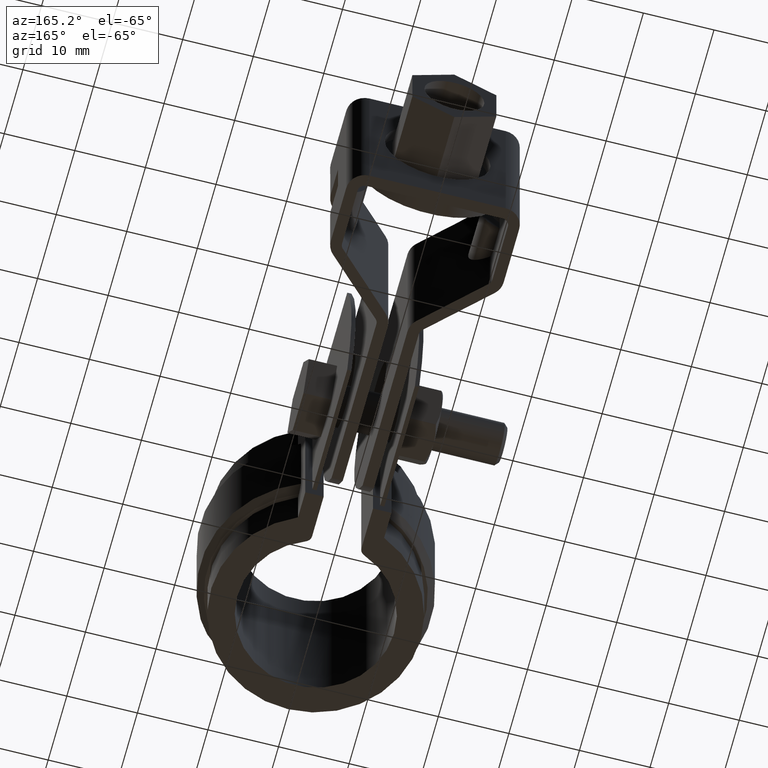
[diagram: clean part render]
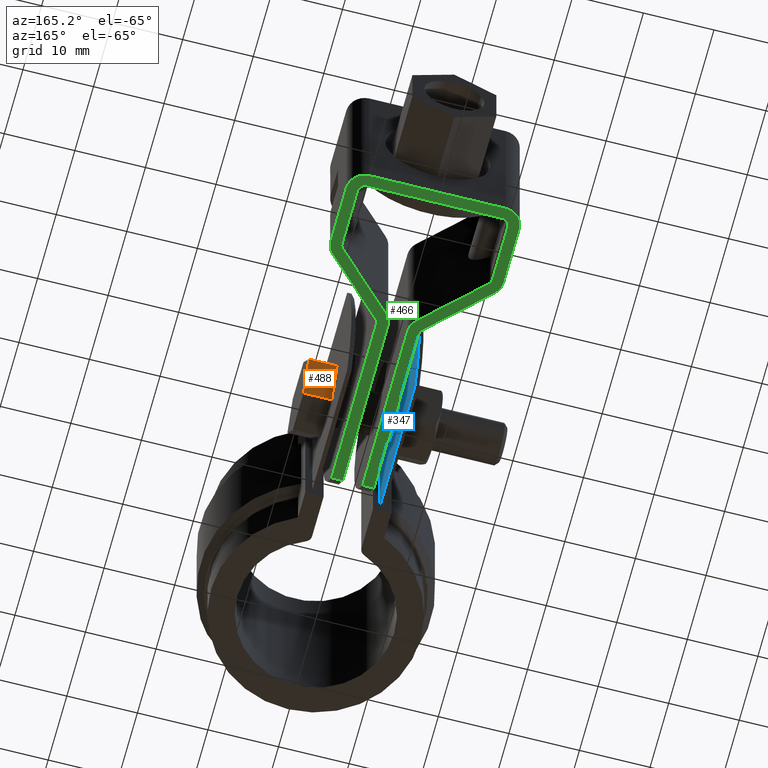
[diagram: same view with three faces highlighted in distinct colors, each labeled with its STEP entity id]
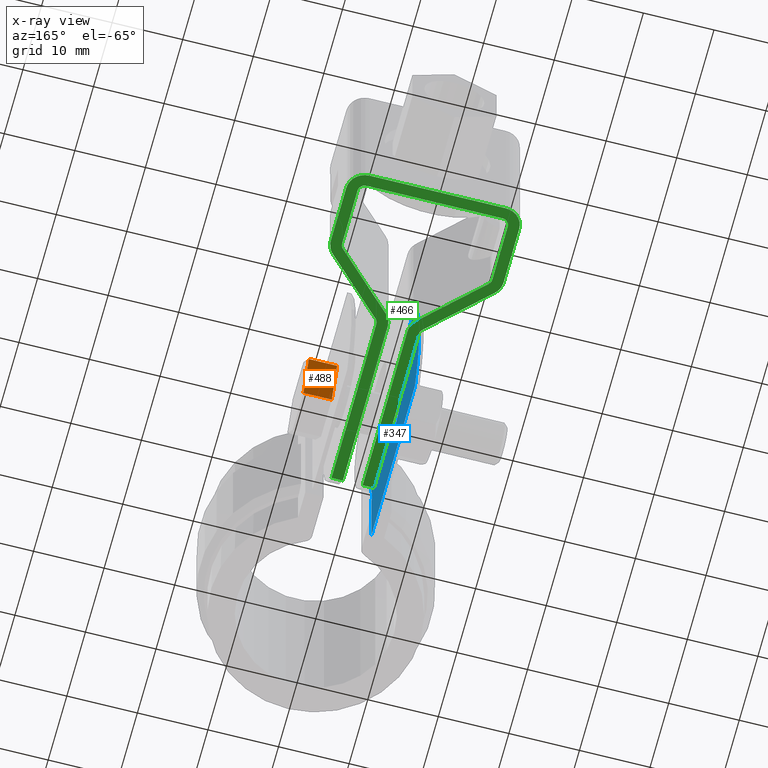
[diagram: x-ray of the same camera — body ghosted, the three highlighted faces saturated]
A machine part, auxiliary view with three faces highlighted in distinct colors.
The next image is the same camera in x-ray (body ghosted, the three faces saturated) — at least one of them is partly hidden behind the body in this view.
Their STEP definitions:

[orange] entity #488 — the highlighted planar face has unit normal (0, -0.866, 0.5).
#488 = ADVANCED_FACE( '', ( #892 ), #893, .F. );
#892 = FACE_OUTER_BOUND( '', #1721, .T. );
#893 = PLANE( '', #1722 );
#1721 = EDGE_LOOP( '', ( #4222, #4223, #4224, #4225 ) );
#1722 = AXIS2_PLACEMENT_3D( '', #4226, #4227, #4228 );
#4222 = ORIENTED_EDGE( '', *, *, #4970, .T. );
#4223 = ORIENTED_EDGE( '', *, *, #4971, .F. );
#4224 = ORIENTED_EDGE( '', *, *, #4972, .F. );
#4225 = ORIENTED_EDGE( '', *, *, #4973, .T. );
#4226 = CARTESIAN_POINT( '', ( 9.09999999999999, 27.8447660081834, -17.5000000000000 ) );
#4227 = DIRECTION( '', ( 0.000000000000000, -0.866025403784439, 0.500000000000000 ) );
#4228 = DIRECTION( '', ( 0.000000000000000, -0.500000000000000, -0.866025403784439 ) );
#4970 = EDGE_CURVE( '', #5878, #5879, #5880, .T. );
#4971 = EDGE_CURVE( '', #5881, #5879, #5882, .T. );
#4972 = EDGE_CURVE( '', #5883, #5881, #5884, .T. );
#4973 = EDGE_CURVE( '', #5883, #5878, #5885, .T. );
#5878 = VERTEX_POINT( '', #8507 );
#5879 = VERTEX_POINT( '', #8508 );
#5880 = LINE( '', #8509, #8510 );
#5881 = VERTEX_POINT( '', #8511 );
#5882 = LINE( '', #8512, #8513 );
#5883 = VERTEX_POINT( '', #8514 );
#5884 = LINE( '', #8515, #8516 );
#5885 = LINE( '', #8517, #8518 );
#8507 = CARTESIAN_POINT( '', ( 5.09999999999999, 27.8447660081834, -17.5000000000000 ) );
#8508 = CARTESIAN_POINT( '', ( 5.09999999999999, 30.7315173541315, -12.5000000000000 ) );
#8509 = CARTESIAN_POINT( '', ( 5.09999999999999, 27.8447660081834, -17.5000000000000 ) );
#8510 = VECTOR( '', #9380, 1000.00000000000 );
#8511 = CARTESIAN_POINT( '', ( 9.09999999999999, 30.7315173541315, -12.5000000000000 ) );
#8512 = CARTESIAN_POINT( '', ( 9.09999999999999, 30.7315173541315, -12.5000000000000 ) );
#8513 = VECTOR( '', #9381, 1000.00000000000 );
#8514 = CARTESIAN_POINT( '', ( 9.09999999999999, 27.8447660081834, -17.5000000000000 ) );
#8515 = CARTESIAN_POINT( '', ( 9.09999999999999, 27.8447660081834, -17.5000000000000 ) );
#8516 = VECTOR( '', #9382, 1000.00000000000 );
#8517 = CARTESIAN_POINT( '', ( 9.09999999999999, 27.8447660081834, -17.5000000000000 ) );
#8518 = VECTOR( '', #9383, 1000.00000000000 );
#9380 = DIRECTION( '', ( 0.000000000000000, 0.500000000000000, 0.866025403784439 ) );
#9381 = DIRECTION( '', ( -1.00000000000000, 0.000000000000000, 0.000000000000000 ) );
#9382 = DIRECTION( '', ( 0.000000000000000, 0.500000000000000, 0.866025403784439 ) );
#9383 = DIRECTION( '', ( -1.00000000000000, 0.000000000000000, 0.000000000000000 ) );

[blue] entity #347 — the highlighted planar face has unit normal (1, -0, 0).
#347 = ADVANCED_FACE( '', ( #589, #590 ), #591, .T. );
#589 = FACE_BOUND( '', #1178, .T. );
#590 = FACE_OUTER_BOUND( '', #1179, .T. );
#591 = PLANE( '', #1180 );
#1178 = EDGE_LOOP( '', ( #2559 ) );
#1179 = EDGE_LOOP( '', ( #2560, #2561, #2562, #2563, #2564, #2565 ) );
#1180 = AXIS2_PLACEMENT_3D( '', #2566, #2567, #2568 );
#2559 = ORIENTED_EDGE( '', *, *, #4596, .T. );
#2560 = ORIENTED_EDGE( '', *, *, #4582, .T. );
#2561 = ORIENTED_EDGE( '', *, *, #4592, .F. );
#2562 = ORIENTED_EDGE( '', *, *, #4539, .T. );
#2563 = ORIENTED_EDGE( '', *, *, #4530, .F. );
#2564 = ORIENTED_EDGE( '', *, *, #4537, .T. );
#2565 = ORIENTED_EDGE( '', *, *, #4496, .T. );
#2566 = CARTESIAN_POINT( '', ( -4.50000000000000, 38.4580146622353, 0.000000000000000 ) );
#2567 = DIRECTION( '', ( 1.00000000000000, -6.12303176911189E-017, 0.000000000000000 ) );
#2568 = DIRECTION( '', ( -6.12303176911189E-017, -1.00000000000000, 0.000000000000000 ) );
#4496 = EDGE_CURVE( '', #5075, #5092, #5094, .T. );
#4530 = EDGE_CURVE( '', #5152, #5154, #5155, .T. );
#4537 = EDGE_CURVE( '', #5152, #5075, #5165, .T. );
#4539 = EDGE_CURVE( '', #5168, #5154, #5169, .T. );
#4582 = EDGE_CURVE( '', #5092, #5239, #5241, .T. );
#4592 = EDGE_CURVE( '', #5168, #5239, #5251, .T. );
#4596 = EDGE_CURVE( '', #5257, #5257, #5258, .F. );
#5075 = VERTEX_POINT( '', #6126 );
#5092 = VERTEX_POINT( '', #6148 );
#5094 = LINE( '', #6150, #6151 );
#5152 = VERTEX_POINT( '', #6461 );
#5154 = VERTEX_POINT( '', #6464 );
#5155 = LINE( '', #6465, #6466 );
#5165 = CIRCLE( '', #6477, 35.0000000000000 );
#5168 = VERTEX_POINT( '', #6481 );
#5169 = LINE( '', #6482, #6483 );
#5239 = VERTEX_POINT( '', #6813 );
#5241 = LINE( '', #6828, #6829 );
#5251 = B_SPLINE_CURVE_WITH_KNOTS( '', 3, ( #6870, #6871, #6872, #6873, #6874 ), .UNSPECIFIED., .F., .F., ( 4, 1, 4 ), ( 7.27248122833757E-014, 0.00189834561584315, 0.00379669123161330 ), .UNSPECIFIED. );
#5257 = VERTEX_POINT( '', #6918 );
#5258 = CIRCLE( '', #6919, 3.50000000000000 );
#6126 = CARTESIAN_POINT( '', ( -4.50000000000000, 36.1497567387904, 0.000000000000000 ) );
#6148 = CARTESIAN_POINT( '', ( -4.50000000000000, 12.7485724691041, 0.000000000000000 ) );
#6150 = CARTESIAN_POINT( '', ( -4.50000000000000, 38.4580146622353, 0.000000000000000 ) );
#6151 = VECTOR( '', #8760, 1000.00000000000 );
#6461 = CARTESIAN_POINT( '', ( -4.50000000000000, 36.1497567387904, -25.0000000000000 ) );
#6464 = CARTESIAN_POINT( '', ( -4.50000000000000, 12.7485724691041, -25.0000000000000 ) );
#6465 = CARTESIAN_POINT( '', ( -4.50000000000000, 38.4580146622353, -25.0000000000000 ) );
#6466 = VECTOR( '', #8789, 1000.00000000000 );
#6477 = AXIS2_PLACEMENT_3D( '', #8806, #8807, #8808 );
#6481 = CARTESIAN_POINT( '', ( -4.50000000000000, 12.7485724690808, -14.3840607566639 ) );
#6482 = CARTESIAN_POINT( '', ( -4.50000000000000, 12.7485724691041, 0.000000000000000 ) );
#6483 = VECTOR( '', #8810, 1000.00000000000 );
#6813 = CARTESIAN_POINT( '', ( -4.50000000000000, 12.7485724690808, -10.6159392433361 ) );
#6828 = CARTESIAN_POINT( '', ( -4.50000000000000, 12.7485724691041, 0.000000000000000 ) );
#6829 = VECTOR( '', #8851, 1000.00000000000 );
#6870 = CARTESIAN_POINT( '', ( -4.50000000000003, 12.7485724690573, -14.3840607567347 ) );
#6871 = CARTESIAN_POINT( '', ( -4.50000000000003, 12.9499317954731, -13.7769320858321 ) );
#6872 = CARTESIAN_POINT( '', ( -4.50000000000004, 13.1626015936870, -12.5000000000001 ) );
#6873 = CARTESIAN_POINT( '', ( -4.50000000000003, 12.9499317954731, -11.2230679141680 ) );
#6874 = CARTESIAN_POINT( '', ( -4.50000000000003, 12.7485724690574, -10.6159392432655 ) );
#6918 = CARTESIAN_POINT( '', ( -4.50000000000000, 28.4580146622353, -12.5000000000000 ) );
#6919 = AXIS2_PLACEMENT_3D( '', #8859, #8860, #8861 );
#8760 = DIRECTION( '', ( -6.12303176911189E-017, -1.00000000000000, 0.000000000000000 ) );
#8789 = DIRECTION( '', ( -6.12303176911189E-017, -1.00000000000000, 0.000000000000000 ) );
#8806 = CARTESIAN_POINT( '', ( -4.50000000000000, 3.45801466223531, -12.5000000000000 ) );
#8807 = DIRECTION( '', ( 1.00000000000000, -6.12303176911189E-017, 0.000000000000000 ) );
#8808 = DIRECTION( '', ( 6.12303176911189E-017, 1.00000000000000, 0.000000000000000 ) );
#8810 = DIRECTION( '', ( 0.000000000000000, 0.000000000000000, -1.00000000000000 ) );
#8851 = DIRECTION( '', ( 0.000000000000000, 0.000000000000000, -1.00000000000000 ) );
#8859 = CARTESIAN_POINT( '', ( -4.50000000000000, 24.9580146622353, -12.5000000000000 ) );
#8860 = DIRECTION( '', ( 1.00000000000000, -6.12303176911189E-017, 0.000000000000000 ) );
#8861 = DIRECTION( '', ( 6.12303176911189E-017, 1.00000000000000, 0.000000000000000 ) );

[green] entity #466 — the highlighted planar face has unit normal (0, 0, -1).
#466 = ADVANCED_FACE( '', ( #840 ), #841, .T. );
#840 = FACE_OUTER_BOUND( '', #1669, .T. );
#841 = PLANE( '', #1670 );
#1669 = EDGE_LOOP( '', ( #4039, #4040, #4041, #4042, #4043, #4044, #4045, #4046, #4047, #4048, #4049, #4050, #4051, #4052, #4053, #4054, #4055, #4056, #4057, #4058, #4059, #4060, #4061, #4062, #4063, #4064, #4065, #4066 ) );
#1670 = AXIS2_PLACEMENT_3D( '', #4067, #4068, #4069 );
#4039 = ORIENTED_EDGE( '', *, *, #4923, .T. );
#4040 = ORIENTED_EDGE( '', *, *, #4888, .T. );
#4041 = ORIENTED_EDGE( '', *, *, #4897, .F. );
#4042 = ORIENTED_EDGE( '', *, *, #4891, .F. );
#4043 = ORIENTED_EDGE( '', *, *, #4896, .F. );
#4044 = ORIENTED_EDGE( '', *, *, #4885, .T. );
#4045 = ORIENTED_EDGE( '', *, *, #4932, .T. );
#4046 = ORIENTED_EDGE( '', *, *, #4933, .T. );
#4047 = ORIENTED_EDGE( '', *, *, #4934, .T. );
#4048 = ORIENTED_EDGE( '', *, *, #4840, .T. );
#4049 = ORIENTED_EDGE( '', *, *, #4931, .T. );
#4050 = ORIENTED_EDGE( '', *, *, #4883, .F. );
#4051 = ORIENTED_EDGE( '', *, *, #4870, .F. );
#4052 = ORIENTED_EDGE( '', *, *, #4935, .F. );
#4053 = ORIENTED_EDGE( '', *, *, #4936, .F. );
#4054 = ORIENTED_EDGE( '', *, *, #4937, .F. );
#4055 = ORIENTED_EDGE( '', *, *, #4847, .T. );
#4056 = ORIENTED_EDGE( '', *, *, #4843, .T. );
#4057 = ORIENTED_EDGE( '', *, *, #4938, .T. );
#4058 = ORIENTED_EDGE( '', *, *, #4939, .F. );
#4059 = ORIENTED_EDGE( '', *, *, #4876, .F. );
#4060 = ORIENTED_EDGE( '', *, *, #4873, .F. );
#4061 = ORIENTED_EDGE( '', *, *, #4880, .F. );
#4062 = ORIENTED_EDGE( '', *, *, #4881, .F. );
#4063 = ORIENTED_EDGE( '', *, *, #4930, .T. );
#4064 = ORIENTED_EDGE( '', *, *, #4928, .T. );
#4065 = ORIENTED_EDGE( '', *, *, #4925, .T. );
#4066 = ORIENTED_EDGE( '', *, *, #4921, .T. );
#4067 = CARTESIAN_POINT( '', ( -9.64999999980245, 62.6980146721844, -24.9999999871374 ) );
#4068 = DIRECTION( '', ( 7.65540480244708E-013, 9.34504695848679E-011, -1.00000000000000 ) );
#4069 = DIRECTION( '', ( 8.53589041478956E-013, 1.00000000000000, 9.34504695848685E-011 ) );
#4840 = EDGE_CURVE( '', #5668, #5669, #5670, .T. );
#4843 = EDGE_CURVE( '', #5673, #5674, #5675, .T. );
#4847 = EDGE_CURVE( '', #5680, #5673, #5681, .T. );
#4870 = EDGE_CURVE( '', #5717, #5719, #5720, .T. );
#4873 = EDGE_CURVE( '', #5722, #5724, #5725, .T. );
#4876 = EDGE_CURVE( '', #5724, #5728, #5729, .T. );
#4880 = EDGE_CURVE( '', #5732, #5722, #5734, .T. );
#4881 = EDGE_CURVE( '', #5735, #5732, #5736, .T. );
#4883 = EDGE_CURVE( '', #5719, #5738, #5739, .T. );
#4885 = EDGE_CURVE( '', #5741, #5742, #5743, .F. );
#4888 = EDGE_CURVE( '', #5746, #5747, #5748, .T. );
#4891 = EDGE_CURVE( '', #5751, #5752, #5753, .T. );
#4896 = EDGE_CURVE( '', #5741, #5751, #5760, .T. );
#4897 = EDGE_CURVE( '', #5752, #5747, #5761, .T. );
#4921 = EDGE_CURVE( '', #5802, #5800, #5803, .T. );
#4923 = EDGE_CURVE( '', #5800, #5746, #5805, .T. );
#4925 = EDGE_CURVE( '', #5807, #5802, #5808, .T. );
#4928 = EDGE_CURVE( '', #5811, #5807, #5812, .T. );
#4930 = EDGE_CURVE( '', #5735, #5811, #5814, .T. );
#4931 = EDGE_CURVE( '', #5669, #5738, #5815, .T. );
#4932 = EDGE_CURVE( '', #5742, #5816, #5817, .T. );
#4933 = EDGE_CURVE( '', #5816, #5818, #5819, .T. );
#4934 = EDGE_CURVE( '', #5818, #5668, #5820, .T. );
#4935 = EDGE_CURVE( '', #5821, #5717, #5822, .T. );
#4936 = EDGE_CURVE( '', #5823, #5821, #5824, .T. );
#4937 = EDGE_CURVE( '', #5680, #5823, #5825, .F. );
#4938 = EDGE_CURVE( '', #5674, #5826, #5827, .T. );
#4939 = EDGE_CURVE( '', #5728, #5826, #5828, .T. );
#5668 = VERTEX_POINT( '', #8130 );
#5669 = VERTEX_POINT( '', #8131 );
#5670 = CIRCLE( '', #8132, 2.59999999999999 );
#5673 = VERTEX_POINT( '', #8137 );
#5674 = VERTEX_POINT( '', #8138 );
#5675 = LINE( '', #8139, #8140 );
#5680 = VERTEX_POINT( '', #8145 );
#5681 = LINE( '', #8146, #8147 );
#5717 = VERTEX_POINT( '', #8220 );
#5719 = VERTEX_POINT( '', #8223 );
#5720 = LINE( '', #8224, #8225 );
#5722 = VERTEX_POINT( '', #8228 );
#5724 = VERTEX_POINT( '', #8231 );
#5725 = CIRCLE( '', #8232, 0.999999999999999 );
#5728 = VERTEX_POINT( '', #8237 );
#5729 = LINE( '', #8238, #8239 );
#5732 = VERTEX_POINT( '', #8244 );
#5734 = LINE( '', #8247, #8248 );
#5735 = VERTEX_POINT( '', #8249 );
#5736 = CIRCLE( '', #8250, 1.00000000000000 );
#5738 = VERTEX_POINT( '', #8253 );
#5739 = CIRCLE( '', #8254, 2.59999999999999 );
#5741 = VERTEX_POINT( '', #8257 );
#5742 = VERTEX_POINT( '', #8258 );
#5743 = CIRCLE( '', #8259, 1.00000000000000 );
#5746 = VERTEX_POINT( '', #8264 );
#5747 = VERTEX_POINT( '', #8265 );
#5748 = CIRCLE( '', #8266, 2.60000000000000 );
#5751 = VERTEX_POINT( '', #8271 );
#5752 = VERTEX_POINT( '', #8272 );
#5753 = LINE( '', #8273, #8274 );
#5760 = LINE( '', #8281, #8282 );
#5761 = LINE( '', #8283, #8284 );
#5800 = VERTEX_POINT( '', #8359 );
#5802 = VERTEX_POINT( '', #8362 );
#5803 = CIRCLE( '', #8363, 1.00000000000000 );
#5805 = LINE( '', #8366, #8367 );
#5807 = VERTEX_POINT( '', #8370 );
#5808 = LINE( '', #8371, #8372 );
#5811 = VERTEX_POINT( '', #8377 );
#5812 = CIRCLE( '', #8378, 1.00000000000000 );
#5814 = LINE( '', #8381, #8382 );
#5815 = LINE( '', #8383, #8384 );
#5816 = VERTEX_POINT( '', #8385 );
#5817 = LINE( '', #8386, #8387 );
#5818 = VERTEX_POINT( '', #8388 );
#5819 = CIRCLE( '', #8389, 2.59999999999999 );
#5820 = LINE( '', #8390, #8391 );
#5821 = VERTEX_POINT( '', #8392 );
#5822 = CIRCLE( '', #8393, 2.59999999999999 );
#5823 = VERTEX_POINT( '', #8394 );
#5824 = LINE( '', #8395, #8396 );
#5825 = CIRCLE( '', #8397, 0.999999999999998 );
#5826 = VERTEX_POINT( '', #8398 );
#5827 = LINE( '', #8399, #8400 );
#5828 = CIRCLE( '', #8401, 2.59999999999999 );
#8130 = CARTESIAN_POINT( '', ( -12.2499999998024, 62.6980146721866, -24.9999999871394 ) );
#8131 = CARTESIAN_POINT( '', ( -9.64999999980023, 65.2980146721844, -24.9999999868944 ) );
#8132 = AXIS2_PLACEMENT_3D( '', #9181, #9182, #9183 );
#8137 = CARTESIAN_POINT( '', ( 3.00000000016092, 19.7980147052621, -24.9999999911367 ) );
#8138 = CARTESIAN_POINT( '', ( 1.40000000016093, 19.7980147052634, -24.9999999911379 ) );
#8139 = CARTESIAN_POINT( '', ( 38.4737108567568, 19.7980147101232, -24.9999999970227 ) );
#8140 = VECTOR( '', #9186, 999.999999999998 );
#8145 = CARTESIAN_POINT( '', ( 3.00000000018146, 43.8521610766942, -24.9999999888888 ) );
#8146 = CARTESIAN_POINT( '', ( 3.00000000018182, 44.2736248455843, -24.9999999888494 ) );
#8147 = VECTOR( '', #9196, 1000.00000000000 );
#8220 = CARTESIAN_POINT( '', ( 12.2500000001904, 54.3938204712801, -24.9999999878966 ) );
#8223 = CARTESIAN_POINT( '', ( 12.2500000001975, 62.6980146721660, -24.9999999871206 ) );
#8224 = CARTESIAN_POINT( '', ( 12.2500000001904, 54.3938204712801, -24.9999999878966 ) );
#8225 = VECTOR( '', #9227, 1000.00000000000 );
#8228 = CARTESIAN_POINT( '', ( 10.6500000001904, 54.3938204410574, -24.9999999878978 ) );
#8231 = CARTESIAN_POINT( '', ( 10.3483238357203, 53.6780384765392, -24.9999999879649 ) );
#8232 = AXIS2_PLACEMENT_3D( '', #9230, #9231, #9232 );
#8237 = CARTESIAN_POINT( '', ( 2.18435802780375, 45.7131941542189, -24.9999999887155 ) );
#8238 = CARTESIAN_POINT( '', ( 10.3483238357203, 53.6780384765392, -24.9999999879649 ) );
#8239 = VECTOR( '', #9235, 1000.00000000000 );
#8244 = CARTESIAN_POINT( '', ( 10.6500000001975, 62.6980146721674, -24.9999999871218 ) );
#8247 = CARTESIAN_POINT( '', ( 10.6500000001975, 62.6980146721674, -24.9999999871218 ) );
#8248 = VECTOR( '', #9239, 1000.00000000000 );
#8249 = CARTESIAN_POINT( '', ( 9.65000000019839, 63.6980146721682, -24.9999999870291 ) );
#8250 = AXIS2_PLACEMENT_3D( '', #9240, #9241, #9242 );
#8253 = CARTESIAN_POINT( '', ( 9.65000000019976, 65.2980146721682, -24.9999999868796 ) );
#8254 = AXIS2_PLACEMENT_3D( '', #9244, #9245, #9246 );
#8257 = CARTESIAN_POINT( '', ( -2.99999999981853, 43.8521610766990, -24.9999999888934 ) );
#8258 = CARTESIAN_POINT( '', ( -3.30167616428742, 44.5679430412178, -24.9999999888268 ) );
#8259 = AXIS2_PLACEMENT_3D( '', #9248, #9249, #9250 );
#8264 = CARTESIAN_POINT( '', ( -2.18435802743765, 45.7131941542223, -24.9999999887189 ) );
#8265 = CARTESIAN_POINT( '', ( -1.39999999981854, 43.8521610464736, -24.9999999888922 ) );
#8266 = AXIS2_PLACEMENT_3D( '', #9253, #9254, #9255 );
#8271 = CARTESIAN_POINT( '', ( -2.99999999983906, 19.7980147052670, -24.9999999911413 ) );
#8272 = CARTESIAN_POINT( '', ( -1.39999999983907, 19.7980147052656, -24.9999999911401 ) );
#8273 = CARTESIAN_POINT( '', ( -38.4737108564350, 19.7980147101887, -24.9999999970817 ) );
#8274 = VECTOR( '', #9258, 1000.00000000000 );
#8281 = CARTESIAN_POINT( '', ( -2.99999999981817, 44.2736248455891, -24.9999999888541 ) );
#8282 = VECTOR( '', #9271, 1000.00000000000 );
#8283 = CARTESIAN_POINT( '', ( -1.39999999984291, 15.2980146721775, -24.9999999915606 ) );
#8284 = VECTOR( '', #9272, 1000.00000000000 );
#8359 = CARTESIAN_POINT( '', ( -10.3483238353407, 53.6780384765565, -24.9999999879808 ) );
#8362 = CARTESIAN_POINT( '', ( -10.6499999998095, 54.3938204410753, -24.9999999879142 ) );
#8363 = AXIS2_PLACEMENT_3D( '', #9308, #9309, #9310 );
#8366 = CARTESIAN_POINT( '', ( -10.3483238353407, 53.6780384765565, -24.9999999879808 ) );
#8367 = VECTOR( '', #9312, 1000.00000000000 );
#8370 = CARTESIAN_POINT( '', ( -10.6499999998025, 62.6980146721852, -24.9999999871381 ) );
#8371 = CARTESIAN_POINT( '', ( -10.6499999998025, 62.6980146721852, -24.9999999871381 ) );
#8372 = VECTOR( '', #9314, 1000.00000000000 );
#8377 = CARTESIAN_POINT( '', ( -9.64999999980160, 63.6980146721844, -24.9999999870439 ) );
#8378 = AXIS2_PLACEMENT_3D( '', #9317, #9318, #9319 );
#8381 = CARTESIAN_POINT( '', ( 9.65000000019841, 63.6980146721679, -24.9999999870291 ) );
#8382 = VECTOR( '', #9321, 1000.00000000000 );
#8383 = CARTESIAN_POINT( '', ( -9.64999999980023, 65.2980146721844, -24.9999999868944 ) );
#8384 = VECTOR( '', #9322, 1000.00000000000 );
#8385 = CARTESIAN_POINT( '', ( -11.4656419721904, 52.5327873635520, -24.9999999880887 ) );
#8386 = CARTESIAN_POINT( '', ( -3.90167616428693, 45.1533088678079, -24.9999999887725 ) );
#8387 = VECTOR( '', #9323, 1000.00000000000 );
#8388 = CARTESIAN_POINT( '', ( -12.2499999998095, 54.3938204713008, -24.9999999879154 ) );
#8389 = AXIS2_PLACEMENT_3D( '', #9324, #9325, #9326 );
#8390 = CARTESIAN_POINT( '', ( -12.2499999998095, 54.3938204713008, -24.9999999879154 ) );
#8391 = VECTOR( '', #9327, 1000.00000000000 );
#8392 = CARTESIAN_POINT( '', ( 11.4656419725682, 52.5327873635327, -24.9999999880711 ) );
#8393 = AXIS2_PLACEMENT_3D( '', #9328, #9329, #9330 );
#8394 = CARTESIAN_POINT( '', ( 3.30167616465156, 44.5679430412124, -24.9999999888217 ) );
#8395 = CARTESIAN_POINT( '', ( 3.90167616465207, 45.1533088678015, -24.9999999887665 ) );
#8396 = VECTOR( '', #9331, 1000.00000000000 );
#8397 = AXIS2_PLACEMENT_3D( '', #9332, #9333, #9334 );
#8398 = CARTESIAN_POINT( '', ( 1.40000000018147, 43.8521610464715, -24.9999999888900 ) );
#8399 = CARTESIAN_POINT( '', ( 1.40000000015709, 15.2980146721753, -24.9999999915584 ) );
#8400 = VECTOR( '', #9335, 1000.00000000000 );
#8401 = AXIS2_PLACEMENT_3D( '', #9336, #9337, #9338 );
#9181 = CARTESIAN_POINT( '', ( -9.64999999980245, 62.6980146721844, -24.9999999871374 ) );
#9182 = DIRECTION( '', ( 7.65540480244708E-013, 9.34504695848679E-011, -1.00000000000000 ) );
#9183 = DIRECTION( '', ( -1.00000000000000, 8.53589041550496E-013, -7.65540480164940E-013 ) );
#9186 = DIRECTION( '', ( -1.00000000000000, 8.53711502185878E-013, -7.65540480164928E-013 ) );
#9196 = DIRECTION( '', ( -8.53822524416801E-013, -1.00000000000000, -9.34504695848685E-011 ) );
#9227 = DIRECTION( '', ( 8.53711502114338E-013, 1.00000000000000, 9.34504695848685E-011 ) );
#9230 = CARTESIAN_POINT( '', ( 9.65000000019045, 54.3938204410583, -24.9999999878986 ) );
#9231 = DIRECTION( '', ( 7.65540480244708E-013, 9.34504695848679E-011, -1.00000000000000 ) );
#9232 = DIRECTION( '', ( 1.00000000000000, -8.53711502185878E-013, 7.65540480164929E-013 ) );
#9235 = DIRECTION( '', ( -0.715781964519100, -0.698323835529891, -6.58066504214428E-011 ) );
#9239 = DIRECTION( '', ( -8.53711502114338E-013, -1.00000000000000, -9.34504695848685E-011 ) );
#9240 = CARTESIAN_POINT( '', ( 9.65000000019754, 62.6980146721682, -24.9999999871225 ) );
#9241 = DIRECTION( '', ( 7.65540480244708E-013, 9.34504695848679E-011, -1.00000000000000 ) );
#9242 = DIRECTION( '', ( 8.53711502114338E-013, 1.00000000000000, 9.34504695848685E-011 ) );
#9244 = CARTESIAN_POINT( '', ( 9.65000000019754, 62.6980146721682, -24.9999999871225 ) );
#9245 = DIRECTION( '', ( -7.65540480244708E-013, -9.34504695848679E-011, 1.00000000000000 ) );
#9246 = DIRECTION( '', ( 1.00000000000000, -8.53711502185878E-013, 7.65540480164929E-013 ) );
#9248 = CARTESIAN_POINT( '', ( -3.99999999981853, 43.8521610766999, -24.9999999888942 ) );
#9249 = DIRECTION( '', ( 7.65540480244708E-013, 9.34504695848679E-011, -1.00000000000000 ) );
#9250 = DIRECTION( '', ( -1.00000000000000, 8.53589041550496E-013, -7.65540480164940E-013 ) );
#9253 = CARTESIAN_POINT( '', ( -3.99999999981853, 43.8521610464758, -24.9999999888942 ) );
#9254 = DIRECTION( '', ( 7.65540480244708E-013, 9.34504695848679E-011, -1.00000000000000 ) );
#9255 = DIRECTION( '', ( -1.00000000000000, 8.53589041550496E-013, -7.65540480164940E-013 ) );
#9258 = DIRECTION( '', ( 1.00000000000000, -8.53589041550496E-013, 7.65540480164940E-013 ) );
#9271 = DIRECTION( '', ( -8.53478019176493E-013, -1.00000000000000, -9.34504695848685E-011 ) );
#9272 = DIRECTION( '', ( 8.53478019176493E-013, 1.00000000000000, 9.34504695848685E-011 ) );
#9308 = CARTESIAN_POINT( '', ( -9.64999999980954, 54.3938204410744, -24.9999999879134 ) );
#9309 = DIRECTION( '', ( -7.65540480244708E-013, -9.34504695848679E-011, 1.00000000000000 ) );
#9310 = DIRECTION( '', ( -1.00000000000000, 8.53589041550496E-013, -7.65540480164940E-013 ) );
#9312 = DIRECTION( '', ( 0.715781964517909, -0.698323835531112, -6.47107302838209E-011 ) );
#9314 = DIRECTION( '', ( -8.53589041478956E-013, -1.00000000000000, -9.34504695848685E-011 ) );
#9317 = CARTESIAN_POINT( '', ( -9.64999999980245, 62.6980146721844, -24.9999999871374 ) );
#9318 = DIRECTION( '', ( -7.65540480244708E-013, -9.34504695848679E-011, 1.00000000000000 ) );
#9319 = DIRECTION( '', ( 8.53589041478956E-013, 1.00000000000000, 9.34504695848685E-011 ) );
#9321 = DIRECTION( '', ( -1.00000000000000, 8.53589041550496E-013, -7.65540480164940E-013 ) );
#9322 = DIRECTION( '', ( 1.00000000000000, -8.53589041550496E-013, 7.65540480164940E-013 ) );
#9323 = DIRECTION( '', ( -0.715781964517909, 0.698323835531112, 6.47107302838209E-011 ) );
#9324 = CARTESIAN_POINT( '', ( -9.64999999980954, 54.3938204712985, -24.9999999879134 ) );
#9325 = DIRECTION( '', ( 7.65540480244704E-013, 9.34504695848679E-011, -1.00000000000000 ) );
#9326 = DIRECTION( '', ( -0.698323835531113, -0.715781964517908, -6.74247558689965E-011 ) );
#9327 = DIRECTION( '', ( 8.53589041478956E-013, 1.00000000000000, 9.34504695848685E-011 ) );
#9328 = CARTESIAN_POINT( '', ( 9.65000000019045, 54.3938204712824, -24.9999999878986 ) );
#9329 = DIRECTION( '', ( -7.65540480244704E-013, -9.34504695848679E-011, 1.00000000000000 ) );
#9330 = DIRECTION( '', ( 0.698323835529889, -0.715781964519102, -6.63555655402714E-011 ) );
#9331 = DIRECTION( '', ( 0.715781964519100, 0.698323835529891, 6.58066504214428E-011 ) );
#9332 = CARTESIAN_POINT( '', ( 4.00000000018145, 43.8521610766933, -24.9999999888880 ) );
#9333 = DIRECTION( '', ( -7.65540480244708E-013, -9.34504695848679E-011, 1.00000000000000 ) );
#9334 = DIRECTION( '', ( 1.00000000000000, -8.53711502185878E-013, 7.65540480164928E-013 ) );
#9335 = DIRECTION( '', ( 8.53822524416801E-013, 1.00000000000000, 9.34504695848685E-011 ) );
#9336 = CARTESIAN_POINT( '', ( 4.00000000018145, 43.8521610464692, -24.9999999888880 ) );
#9337 = DIRECTION( '', ( -7.65540480244708E-013, -9.34504695848679E-011, 1.00000000000000 ) );
#9338 = DIRECTION( '', ( 1.00000000000000, -8.53711502185878E-013, 7.65540480164928E-013 ) );